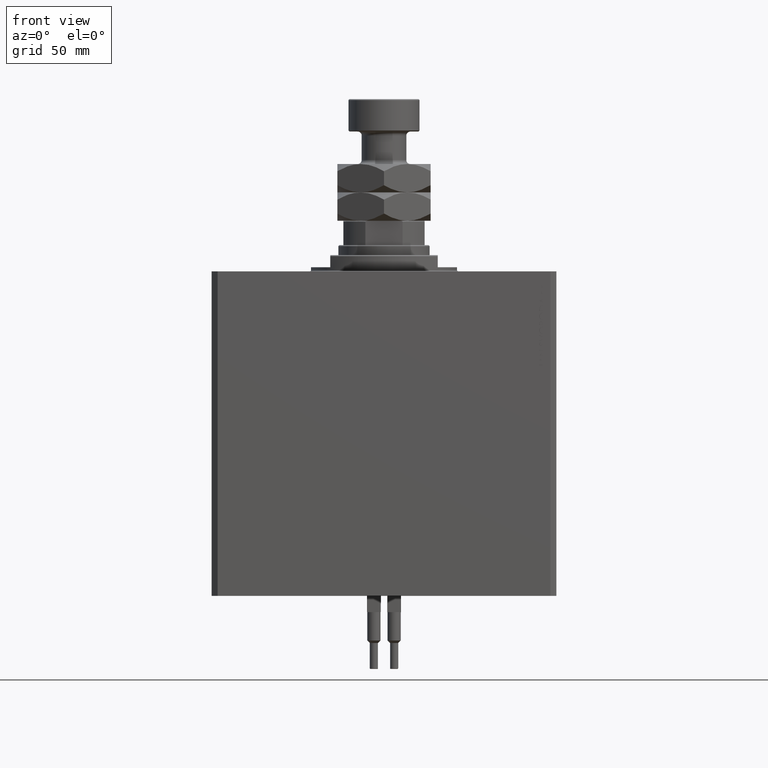
[diagram: clean part render]
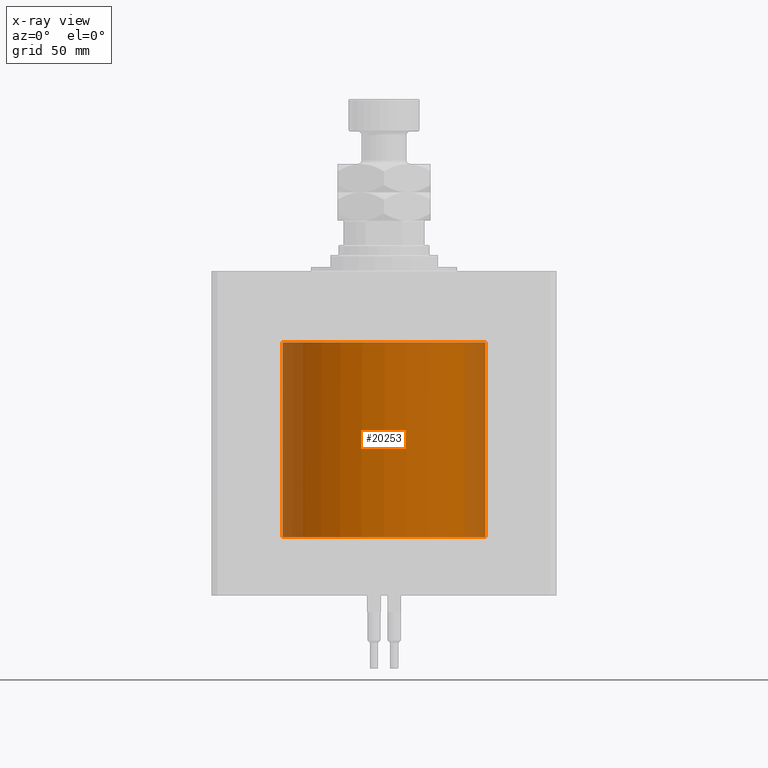
[diagram: x-ray — body ghosted, one internal face saturated and labeled with its STEP entity id]
A machine part, front view, then the same camera in x-ray: the body is ghosted and one INTERNAL B-rep face — a face not visible from any outside direction — is saturated and labeled: STEP entity #20253.
In plain terms, the highlighted cylindrical surface (partial cylindrical patch) has radius 50 mm, axis along (0, 0, 1).
Its self-contained STEP definition (entity closure, byte-faithful):
#6 = VERTEX_POINT ( 'NONE', #46723 ) ;
#35 = CARTESIAN_POINT ( 'NONE',  ( 50.00000000000000000, 0.000000000000000000, -131.0999999999999943 ) ) ;
#201 = CARTESIAN_POINT ( 'NONE',  ( -50.00000000000000000, 6.123233779604962140E-15, -38.99999999999999289 ) ) ;
#1210 = ORIENTED_EDGE ( 'NONE', *, *, #37848, .T. ) ;
#2423 = CARTESIAN_POINT ( 'NONE',  ( 49.95998398718721489, -1.999999999999428901, -123.0000000000000000 ) ) ;
#2808 = CARTESIAN_POINT ( 'NONE',  ( -49.96246406297478160, -1.937413398840420298, -37.54889224077077614 ) ) ;
#3120 = EDGE_CURVE ( 'NONE', #43015, #6, #5037, .T. ) ;
#3173 = CARTESIAN_POINT ( 'NONE',  ( 49.99004265870625119, -1.003759311184759806, -124.7348462532437310 ) ) ;
#3492 = CARTESIAN_POINT ( 'NONE',  ( 49.98522770927797865, -1.229264600374559091, -121.4009454466343527 ) ) ;
#3740 = AXIS2_PLACEMENT_3D ( 'NONE', #48515, #44729, #37403 ) ;
#4487 = AXIS2_PLACEMENT_3D ( 'NONE', #18747, #45799, #27333 ) ;
#4821 = ORIENTED_EDGE ( 'NONE', *, *, #13650, .T. ) ;
#5037 = B_SPLINE_CURVE_WITH_KNOTS ( 'NONE', 3,
 ( #18618, #44462, #33805, #13641, #3492, #34047, #11304, #45919, #26720, #37835, #32865, #5593, #36381, #29074 ),
 .UNSPECIFIED., .F., .F.,
 ( 4, 2, 2, 2, 2, 2, 4 ),
 ( 0.006253537087424623948, 0.007035462048851125541, 0.007817387010277628001, 0.008208349490990878364, 0.008599311971704128726, 0.008990274452417379089, 0.009381236933130629452 ),
 .UNSPECIFIED. ) ;
#5308 = CARTESIAN_POINT ( 'NONE',  ( 0.000000000000000000, 0.000000000000000000, -131.0999999999999943 ) ) ;
#5555 = DIRECTION ( 'NONE',  ( -0.000000000000000000, -0.000000000000000000, 1.000000000000000000 ) ) ;
#5593 = CARTESIAN_POINT ( 'NONE',  ( 49.96050673379642859, -1.987061617709835915, -122.7381003399621306 ) ) ;
#5966 = LINE ( 'NONE', #21345, #36704 ) ;
#6095 = CARTESIAN_POINT ( 'NONE',  ( -50.00000000000000711, -0.2343913586011877048, -38.99999999999999289 ) ) ;
#6339 = CARTESIAN_POINT ( 'NONE',  ( -49.96559901364878442, -1.857984165111916219, -37.77634777026322865 ) ) ;
#9327 = FACE_OUTER_BOUND ( 'NONE', #13905, .T. ) ;
#9854 = CARTESIAN_POINT ( 'NONE',  ( -50.00000000000000000, 6.123233779604962140E-15, -38.99999999999999289 ) ) ;
#10259 = VERTEX_POINT ( 'NONE', #35 ) ;
#10511 = ORIENTED_EDGE ( 'NONE', *, *, #40296, .F. ) ;
#10545 = VERTEX_POINT ( 'NONE', #32017 ) ;
#10722 = CARTESIAN_POINT ( 'NONE',  ( 49.95998398718720779, -1.999999999999428013, -123.1318514635999009 ) ) ;
#11304 = CARTESIAN_POINT ( 'NONE',  ( 49.97474809793081363, -1.590546905431189373, -121.7804578225615444 ) ) ;
#12617 = CYLINDRICAL_SURFACE ( 'NONE', #27858, 50.00000000000000000 ) ;
#13641 = CARTESIAN_POINT ( 'NONE',  ( 49.99045950772250535, -1.005960217718259830, -121.2518665786247567 ) ) ;
#13650 = EDGE_CURVE ( 'NONE', #6, #33882, #40131, .T. ) ;
#13905 = EDGE_LOOP ( 'NONE', ( #45677, #1210, #15673, #47486, #18207, #17599, #4821, #10511 ) ) ;
#14394 = CARTESIAN_POINT ( 'NONE',  ( -49.97286672392512941, -1.648121105391194163, -35.86094898726202729 ) ) ;
#14509 = CARTESIAN_POINT ( 'NONE',  ( 49.96990241271579691, -1.736118028227151777, -124.0014629465740796 ) ) ;
#15140 = CARTESIAN_POINT ( 'NONE',  ( -49.97984988697930220, -1.421508000024528595, -35.58819766753438785 ) ) ;
#15673 = ORIENTED_EDGE ( 'NONE', *, *, #47580, .T. ) ;
#17599 = ORIENTED_EDGE ( 'NONE', *, *, #3120, .T. ) ;
#18207 = ORIENTED_EDGE ( 'NONE', *, *, #44905, .F. ) ;
#18537 = CARTESIAN_POINT ( 'NONE',  ( 49.99999999999998579, -0.2641188933687440565, -124.9999999999999005 ) ) ;
#18618 = CARTESIAN_POINT ( 'NONE',  ( 50.00000000000000000, -6.476745247090812175E-24, -121.0000000000000000 ) ) ;
#18670 = CARTESIAN_POINT ( 'NONE',  ( -49.99609984788813932, -0.6244997998398829075, -35.10000000000000142 ) ) ;
#18747 = CARTESIAN_POINT ( 'NONE',  ( 0.000000000000000000, 0.000000000000000000, -35.10000000000000142 ) ) ;
#18922 = CARTESIAN_POINT ( 'NONE',  ( -49.98221660960945911, -1.336585406528199016, -35.50758464831824313 ) ) ;
#20253 = ADVANCED_FACE ( 'NONE', ( #9327 ), #12617, .F. ) ;
#21345 = CARTESIAN_POINT ( 'NONE',  ( -50.00000000000000000, 6.123233995736766085E-15, -131.0999999999999943 ) ) ;
#21470 = CARTESIAN_POINT ( 'NONE',  ( -49.99826155666686844, -0.4713478738821457736, -38.95772892247887853 ) ) ;
#22331 = CARTESIAN_POINT ( 'NONE',  ( 50.00000000000000000, 3.036302095833841431E-15, -125.0000000000000000 ) ) ;
#22343 = CARTESIAN_POINT ( 'NONE',  ( 49.99780623046721928, -0.5265016851520818442, -124.9469418703547490 ) ) ;
#22585 = CARTESIAN_POINT ( 'NONE',  ( 49.96250192141618385, -1.936245597270937813, -123.5175960379720124 ) ) ;
#22789 = VECTOR ( 'NONE', #5555, 1000.000000000000000 ) ;
#23224 = CARTESIAN_POINT ( 'NONE',  ( -49.99469054023121117, -0.7373259149958935055, -35.13708415070085067 ) ) ;
#24983 = DIRECTION ( 'NONE',  ( 1.000000000000000000, 0.000000000000000000, 0.000000000000000000 ) ) ;
#25356 = VECTOR ( 'NONE', #30754, 1000.000000000000000 ) ;
#25528 = CARTESIAN_POINT ( 'NONE',  ( -49.99218388726402651, -0.9109762285940192772, -38.79582673525598580 ) ) ;
#25897 = DIRECTION ( 'NONE',  ( -0.000000000000000000, -0.000000000000000000, 1.000000000000000000 ) ) ;
#26720 = CARTESIAN_POINT ( 'NONE',  ( 49.96771079265470661, -1.797331103967328758, -122.1130027305813144 ) ) ;
#27333 = DIRECTION ( 'NONE',  ( 1.000000000000000000, 0.000000000000000000, 0.000000000000000000 ) ) ;
#27858 = AXIS2_PLACEMENT_3D ( 'NONE', #5308, #31578, #24983 ) ;
#29074 = CARTESIAN_POINT ( 'NONE',  ( 49.95998398718721489, -1.999999999999428901, -123.0000000000000000 ) ) ;
#29319 = CARTESIAN_POINT ( 'NONE',  ( -49.98779790036550708, -1.118859959786390190, -38.67420950439723271 ) ) ;
#29520 = VERTEX_POINT ( 'NONE', #201 ) ;
#29579 = CARTESIAN_POINT ( 'NONE',  ( -49.95952363031043575, -2.011811262148416546, -37.08642230891133096 ) ) ;
#29823 = CARTESIAN_POINT ( 'NONE',  ( -49.97517326324300768, -1.577382968071372238, -35.76479402846028677 ) ) ;
#30188 = CARTESIAN_POINT ( 'NONE',  ( 49.97737398937861286, -1.506851029816606680, -124.3215211899127439 ) ) ;
#30325 = CARTESIAN_POINT ( 'NONE',  ( -49.98901278991196762, -1.053273605951563052, -35.29573115914438830 ) ) ;
#30754 = DIRECTION ( 'NONE',  ( -0.000000000000000000, -0.000000000000000000, 1.000000000000000000 ) ) ;
#31578 = DIRECTION ( 'NONE',  ( -0.000000000000000000, -0.000000000000000000, 1.000000000000000000 ) ) ;
#32017 = CARTESIAN_POINT ( 'NONE',  ( -50.00000000000000000, 6.123233995736766085E-15, -131.0999999999999943 ) ) ;
#32570 = LINE ( 'NONE', #48978, #22789 ) ;
#32863 = EDGE_CURVE ( 'NONE', #10545, #10259, #40011, .T. ) ;
#32865 = CARTESIAN_POINT ( 'NONE',  ( 49.96250255993842160, -1.936229562432685514, -122.4822931465922125 ) ) ;
#33615 = CARTESIAN_POINT ( 'NONE',  ( -49.96323080599961486, -1.917706352484490839, -36.38575006030225722 ) ) ;
#33805 = CARTESIAN_POINT ( 'NONE',  ( 49.99783037362746541, -0.5243621676384732089, -121.0524449338437449 ) ) ;
#33882 = VERTEX_POINT ( 'NONE', #22331 ) ;
#33966 = CARTESIAN_POINT ( 'NONE',  ( 49.96399151626687285, -1.897913344682612191, -123.6443033636560358 ) ) ;
#34047 = CARTESIAN_POINT ( 'NONE',  ( 49.97739768833877605, -1.506067878005566296, -121.6775869490088695 ) ) ;
#34712 = CARTESIAN_POINT ( 'NONE',  ( 50.00000000000000000, 0.000000000000000000, -35.10000000000000142 ) ) ;
#36270 = CARTESIAN_POINT ( 'NONE',  ( -49.99609984788813932, -0.6244997998398829075, -35.10000000000000142 ) ) ;
#36381 = CARTESIAN_POINT ( 'NONE',  ( 49.95998398718722200, -1.999999999999430234, -122.8680100048972861 ) ) ;
#36534 = CARTESIAN_POINT ( 'NONE',  ( 50.00000000000000000, -6.476745247090812175E-24, -121.0000000000000000 ) ) ;
#36704 = VECTOR ( 'NONE', #25897, 1000.000000000000000 ) ;
#36955 = VERTEX_POINT ( 'NONE', #34712 ) ;
#37403 = DIRECTION ( 'NONE',  ( 1.000000000000000000, 0.000000000000000000, 0.000000000000000000 ) ) ;
#37506 = CARTESIAN_POINT ( 'NONE',  ( 49.99227304315239451, -0.8871831546255505296, -124.7971791001177166 ) ) ;
#37756 = CARTESIAN_POINT ( 'NONE',  ( 49.96770412850970189, -1.797517017228739578, -123.8866422396412048 ) ) ;
#37835 = CARTESIAN_POINT ( 'NONE',  ( 49.96400032681136594, -1.897680768217433700, -122.3550418965682809 ) ) ;
#37848 = EDGE_CURVE ( 'NONE', #10545, #29520, #5966, .T. ) ;
#37995 = CARTESIAN_POINT ( 'NONE',  ( 49.97472557011566607, -1.591243895793996721, -124.2185962027655535 ) ) ;
#38384 = CARTESIAN_POINT ( 'NONE',  ( -49.99295680209232984, -0.8456093560900870276, -35.18372293198463296 ) ) ;
#38566 = LINE ( 'NONE', #42108, #25356 ) ;
#38693 = EDGE_CURVE ( 'NONE', #45728, #36955, #49664, .T. ) ;
#40011 = CIRCLE ( 'NONE', #3740, 50.00000000000000000 ) ;
#40131 = B_SPLINE_CURVE_WITH_KNOTS ( 'NONE', 3,
 ( #2423, #10722, #44832, #22585, #33966, #37756, #14509, #37995, #30188, #41036, #45594, #3173, #37506, #22343, #18537, #45083 ),
 .UNSPECIFIED., .F., .F.,
 ( 4, 2, 2, 2, 2, 2, 2, 4 ),
 ( 0.009381236933130629452, 0.009771789075015000631, 0.01016234121689937007, 0.01055289335878374125, 0.01094344550066811070, 0.01133399764255248188, 0.01172454978443685306, 0.01250565406820559368 ),
 .UNSPECIFIED. ) ;
#40296 = EDGE_CURVE ( 'NONE', #10259, #33882, #32570, .T. ) ;
#41036 = CARTESIAN_POINT ( 'NONE',  ( 49.98259424363551062, -1.322415810693574389, -124.5060659696957686 ) ) ;
#42108 = CARTESIAN_POINT ( 'NONE',  ( 50.00000000000000000, 0.000000000000000000, -131.0999999999999943 ) ) ;
#43015 = VERTEX_POINT ( 'NONE', #36534 ) ;
#43430 = B_SPLINE_CURVE_WITH_KNOTS ( 'NONE', 3,
 ( #9854, #6095, #21470, #25528, #29319, #48755, #44712, #6339, #2808, #29579, #44967, #33615, #49012, #14394, #29823, #15140, #18922, #45968, #30325, #38384, #23224, #18670 ),
 .UNSPECIFIED., .F., .F.,
 ( 4, 2, 2, 2, 2, 2, 2, 2, 2, 2, 4 ),
 ( 0.005621524786058129317, 0.006324042454496604619, 0.007026560122935079922, 0.007729077791373556092, 0.008431595459812032262, 0.009134113128250506697, 0.009836630796688981132, 0.01018788963090822876, 0.01053914846512747638, 0.01089040729934672228, 0.01124166613356596817 ),
 .UNSPECIFIED. ) ;
#44462 = CARTESIAN_POINT ( 'NONE',  ( 49.99999999999999289, -0.2611526669616319185, -121.0000000000000711 ) ) ;
#44712 = CARTESIAN_POINT ( 'NONE',  ( -49.97360713057075543, -1.628428785643726506, -38.18450019345132063 ) ) ;
#44729 = DIRECTION ( 'NONE',  ( 0.000000000000000000, 0.000000000000000000, 1.000000000000000000 ) ) ;
#44832 = CARTESIAN_POINT ( 'NONE',  ( 49.96050875217464693, -1.987010438912732102, -123.2621873130553496 ) ) ;
#44905 = EDGE_CURVE ( 'NONE', #43015, #36955, #38566, .T. ) ;
#44967 = CARTESIAN_POINT ( 'NONE',  ( -49.95969333506032228, -2.007752996430819614, -36.84563501659670948 ) ) ;
#45083 = CARTESIAN_POINT ( 'NONE',  ( 50.00000000000000000, 3.036302095833841431E-15, -125.0000000000000000 ) ) ;
#45594 = CARTESIAN_POINT ( 'NONE',  ( 49.98518738673993056, -1.221859110764516920, -124.5887997326993144 ) ) ;
#45677 = ORIENTED_EDGE ( 'NONE', *, *, #32863, .F. ) ;
#45728 = VERTEX_POINT ( 'NONE', #36270 ) ;
#45799 = DIRECTION ( 'NONE',  ( 0.000000000000000000, 0.000000000000000000, 1.000000000000000000 ) ) ;
#45919 = CARTESIAN_POINT ( 'NONE',  ( 49.96991071935540418, -1.735888708894725907, -121.9980953282573779 ) ) ;
#45968 = CARTESIAN_POINT ( 'NONE',  ( -49.98679020755875513, -1.152927796686953554, -35.36154901614174406 ) ) ;
#46723 = CARTESIAN_POINT ( 'NONE',  ( 49.95998398718721489, -1.999999999999428901, -123.0000000000000000 ) ) ;
#47486 = ORIENTED_EDGE ( 'NONE', *, *, #38693, .T. ) ;
#47580 = EDGE_CURVE ( 'NONE', #29520, #45728, #43430, .T. ) ;
#48515 = CARTESIAN_POINT ( 'NONE',  ( 0.000000000000000000, 0.000000000000000000, -131.0999999999999943 ) ) ;
#48755 = CARTESIAN_POINT ( 'NONE',  ( -49.97854770382267020, -1.475315543916387195, -38.37049958778030145 ) ) ;
#48978 = CARTESIAN_POINT ( 'NONE',  ( 50.00000000000000000, 0.000000000000000000, -131.0999999999999943 ) ) ;
#49012 = CARTESIAN_POINT ( 'NONE',  ( -49.96661949738039254, -1.830787575029445780, -36.16144266401233409 ) ) ;
#49664 = CIRCLE ( 'NONE', #4487, 50.00000000000000000 ) ;